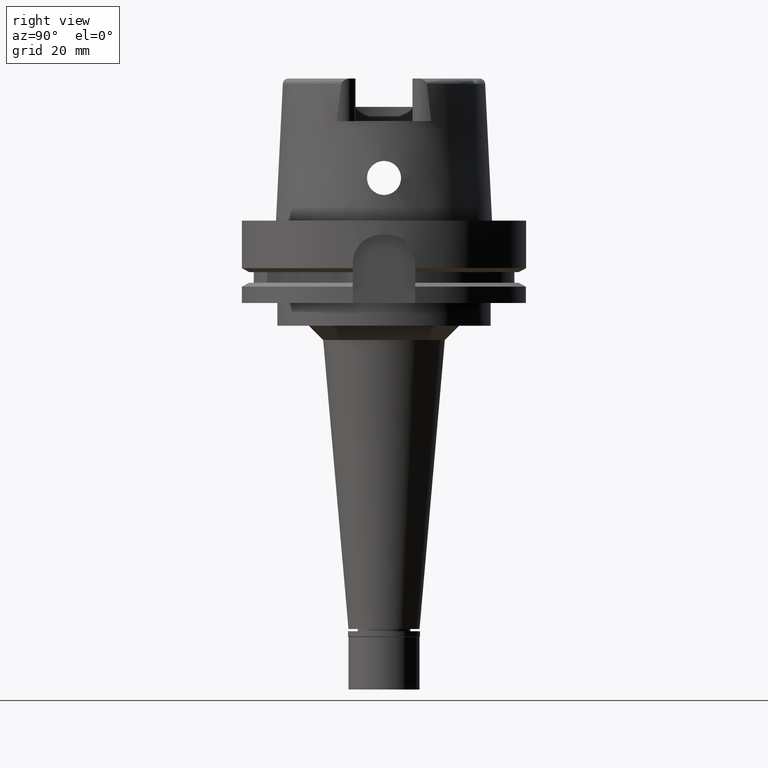
[diagram: clean part render]
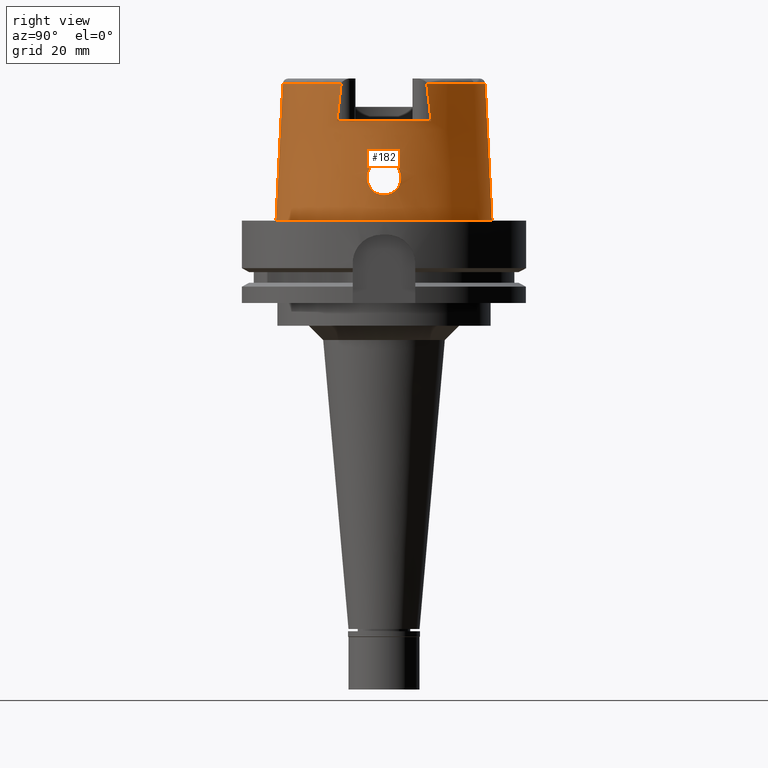
[diagram: same view with one face highlighted and labeled with its STEP entity id]
A machine part, right view. The second image highlights one B-rep face of the part: STEP entity #182.
In plain terms, the highlighted conical surface has half-angle 2.862 deg.
Its self-contained STEP definition (entity closure, byte-faithful):
#69 = CARTESIAN_POINT ( 'NONE',  ( 36.77170340282817307, 5.998323807747828695, 14.84586871748394898 ) ) ;
#91 = CARTESIAN_POINT ( 'NONE',  ( 32.25000000000000000, -16.55285457013000183, 35.00000000000000000 ) ) ;
#92 = CARTESIAN_POINT ( 'NONE',  ( 36.73062635922349273, 5.263057009970363964, 17.90742315768404680 ) ) ;
#116 = CARTESIAN_POINT ( 'NONE',  ( 36.73088728630819588, 5.963273442929759582, 15.76995501664153743 ) ) ;
#120 = CARTESIAN_POINT ( 'NONE',  ( 0.0000000000000000000, 0.0000000000000000000, 35.00000000000000000 ) ) ;
#148 = CARTESIAN_POINT ( 'NONE',  ( 37.06201828075841576, 5.085026754921087466, 11.80942053229333055 ) ) ;
#149 = CARTESIAN_POINT ( 'NONE',  ( 36.94905369668130390, -5.551755325992986378, 12.72446929271404414 ) ) ;
#150 = CONICAL_SURFACE ( 'NONE', #1864, 36.79747973821000073, 0.04996004983832824653 ) ;
#158 = LINE ( 'NONE', #572, #3070 ) ;
#172 = CARTESIAN_POINT ( 'NONE',  ( 36.71763611367505575, 5.802818758825854850, 16.53846350264511855 ) ) ;
#174 = CARTESIAN_POINT ( 'NONE',  ( 36.86289881201270902, -3.101799390110007160, 20.13631020265361471 ) ) ;
#180 = DIRECTION ( 'NONE',  ( 0.0000000000000000000, -1.000000000000000000, 0.0000000000000000000 ) ) ;
#182 = ADVANCED_FACE ( 'NONE', ( #4064, #205 ), #150, .T. ) ;
#198 = CARTESIAN_POINT ( 'NONE',  ( 0.0000000000000000000, 0.0000000000000000000, 1.023181539494999863E-12 ) ) ;
#199 = CARTESIAN_POINT ( 'NONE',  ( 36.88764643531273180, -2.613024239903320112, 20.40470655421233204 ) ) ;
#205 = FACE_BOUND ( 'NONE', #3739, .T. ) ;
#229 = CARTESIAN_POINT ( 'NONE',  ( 36.76210510961054467, -5.999969291128392612, 15.02948134559582449 ) ) ;
#251 = CARTESIAN_POINT ( 'NONE',  ( 0.0000000000000000000, 38.00001658251999714, 1.023181539494999863E-12 ) ) ;
#258 = CARTESIAN_POINT ( 'NONE',  ( 36.75520430954519213, -5.997838674879763410, 15.17282634179819212 ) ) ;
#273 = CIRCLE ( 'NONE', #4415, 38.00001658251999714 ) ;
#278 = CARTESIAN_POINT ( 'NONE',  ( 32.25000000000000000, 16.55285457013000183, 35.00000000000000000 ) ) ;
#284 = CARTESIAN_POINT ( 'NONE',  ( 37.51913731733983326, -1.534104571080828094, 9.142248273742586306 ) ) ;
#310 = ORIENTED_EDGE ( 'NONE', *, *, #1249, .F. ) ;
#314 = CARTESIAN_POINT ( 'NONE',  ( 37.07758419378381376, -5.012585787051692776, 11.70239769250137662 ) ) ;
#337 = CARTESIAN_POINT ( 'NONE',  ( 36.84474273342813433, 3.423711952793474289, 19.92753559525254659 ) ) ;
#365 = CARTESIAN_POINT ( 'NONE',  ( 36.86792965852482240, 3.018333182345886545, 20.18926292847180193 ) ) ;
#375 = CARTESIAN_POINT ( 'NONE',  ( 37.55000165825000380, 0.0000000000000000000, 9.000000000000000000 ) ) ;
#395 = CARTESIAN_POINT ( 'NONE',  ( 36.89319844010301352, 2.488527337151591912, 20.45983294518216056 ) ) ;
#399 = CARTESIAN_POINT ( 'NONE',  ( 37.16180421870872408, -4.583096864710112683, 11.12637670602410012 ) ) ;
#436 = CARTESIAN_POINT ( 'NONE',  ( 37.46510143188383779, 2.193262516983819133, 9.415134949131878983 ) ) ;
#462 = CARTESIAN_POINT ( 'NONE',  ( 37.39389957564971212, 2.961858504049465157, 9.781037490243443600 ) ) ;
#489 = CARTESIAN_POINT ( 'NONE',  ( 37.37200879162757161, 3.157378145749330844, 9.897493814660698774 ) ) ;
#515 = CARTESIAN_POINT ( 'NONE',  ( 36.71910958072909636, 5.545544434581100468, 17.29062471908202170 ) ) ;
#536 = CARTESIAN_POINT ( 'NONE',  ( 36.79297988199979841, 4.259196576708640158, 19.22603776392158537 ) ) ;
#561 = CARTESIAN_POINT ( 'NONE',  ( 36.83995049438819791, 3.503891532012454402, 19.87084743243649854 ) ) ;
#562 = CARTESIAN_POINT ( 'NONE',  ( 36.89778564757052237, -5.727707615563293331, 13.21009850542960784 ) ) ;
#572 = CARTESIAN_POINT ( 'NONE',  ( 0.002482252536764999965, 35.59494263424999616, 48.09987853799000135 ) ) ;
#578 = EDGE_CURVE ( 'NONE', #1991, #2463, #4198, .T. ) ;
#596 = CARTESIAN_POINT ( 'NONE',  ( 36.78368377135413425, 5.989813296407697329, 14.63850693621169086 ) ) ;
#597 = CARTESIAN_POINT ( 'NONE',  ( 36.79780175131855202, -4.187045417439573924, 19.29764023398736228 ) ) ;
#621 = CARTESIAN_POINT ( 'NONE',  ( 36.82225838300250587, 5.930942061816942612, 14.07103620850426040 ) ) ;
#622 = CARTESIAN_POINT ( 'NONE',  ( 36.87019529336619428, -2.964167350736573336, 20.21776577993959378 ) ) ;
#629 = DIRECTION ( 'NONE',  ( 0.0000000000000000000, 0.0000000000000000000, -1.000000000000000000 ) ) ;
#650 = CARTESIAN_POINT ( 'NONE',  ( 36.85894363251249928, 3.184285589736132849, 20.08887233118191062 ) ) ;
#651 = CARTESIAN_POINT ( 'NONE',  ( 36.79603966127876191, -4.213366307936619926, 19.27173219093134549 ) ) ;
#663 = VERTEX_POINT ( 'NONE', #4878 ) ;
#676 = CARTESIAN_POINT ( 'NONE',  ( 36.91960058821116775, -1.808267391334159369, 20.72193690257478593 ) ) ;
#706 = CARTESIAN_POINT ( 'NONE',  ( 37.45644412486605290, -2.300685249214515782, 9.458609365832110427 ) ) ;
#720 = EDGE_CURVE ( 'NONE', #1013, #5382, #1192, .T. ) ;
#725 = CARTESIAN_POINT ( 'NONE',  ( 0.0000000000000000000, -38.00001658251999714, 6.821210263297000155E-13 ) ) ;
#726 = B_SPLINE_CURVE_WITH_KNOTS ( 'NONE', 3,
 ( #375, #5143, #3847, #3816, #3016, #4296, #3478, #5201, #436, #4739, #831, #4349, #1705, #2601, #2212, #462, #3897, #489, #4657, #2100, #1677, #3392, #5116, #1392, #4791, #5225, #1053, #1869, #2285, #1468, #5333, #2733, #4002, #4905, #5310, #2763, #3584, #3181, #3100, #148, #1442, #4453, #2261, #4481, #3152, #4031, #1423, #1021, #976, #621, #4874, #2341, #596, #2318, #69, #3974, #1896, #1787, #3505, #116, #4380, #172, #3610, #4824, #1366, #3948, #3075, #944, #2657, #515, #2237, #92, #1813, #1840, #5282, #3558, #3527, #3129, #5251, #2682, #4403, #536, #4847, #996, #2707, #4428, #561, #337, #1184, #650, #365, #1635, #4254, #395, #5507, #4224, #3748, #2535, #5479 ),
 .UNSPECIFIED., .F., .F.,
 ( 4, 2, 2, 1, 1, 1, 2, 2, 2, 2, 1, 1, 1, 2, 2, 2, 2, 1, 1, 2, 2, 2, 2, 2, 2, 1, 1, 2, 2, 2, 2, 2, 1, 2, 2, 2, 2, 1, 1, 1, 1, 2, 2, 2, 2, 2, 1, 1, 2, 2, 2, 1, 2, 2, 2, 1, 2, 2, 4 ),
 ( 0.0000000000000000000, 0.06249999999999854283, 0.09374999999999780731, 0.1093749999999975020, 0.1171874999999972800, 0.1210937499999971828, 0.1230468749999971134, 0.1249999999999970579, 0.1562499999999947542, 0.1718749999999936162, 0.1796874999999930334, 0.1835937499999927003, 0.1855468749999926725, 0.1865234374999927280, 0.1874999999999928113, 0.2187499999999952816, 0.2343749999999965861, 0.2421874999999972800, 0.2460937499999976408, 0.2480468749999978073, 0.2499999999999979461, 0.2812499999999983902, 0.2968749999999985012, 0.3124999999999986677, 0.3437499999999986677, 0.3593749999999986677, 0.3671874999999987788, 0.3710937499999986677, 0.3749999999999985567, 0.4374999999999946709, 0.4687499999999927280, 0.4843749999999916178, 0.4921874999999908962, 0.4960937499999905631, 0.4999999999999902300, 0.5624999999999813483, 0.5937499999999771294, 0.6093749999999753530, 0.6171874999999745759, 0.6210937499999740208, 0.6230468749999739098, 0.6240234374999736877, 0.6249999999999734657, 0.6874999999999700240, 0.7187499999999682476, 0.7343749999999674705, 0.7421874999999670264, 0.7460937499999668043, 0.7480468749999666933, 0.7499999999999665823, 0.7812499999999702460, 0.7968749999999723554, 0.8046874999999734657, 0.8124999999999745759, 0.8437499999999792388, 0.8593749999999815703, 0.8671874999999825695, 0.8749999999999835687, 1.000000000000000000 ),
 .UNSPECIFIED. ) ;
#767 = DIRECTION ( 'NONE',  ( 5.154182075151068004E-05, -0.04993927430816067631, -0.9987522546783135224 ) ) ;
#796 = CARTESIAN_POINT ( 'NONE',  ( 37.27342246940529691, -3.931114298050382594, 10.44490115556769716 ) ) ;
#813 = CARTESIAN_POINT ( 'NONE',  ( 0.0000000000000000000, 0.0000000000000000000, 48.09987853799000135 ) ) ;
#818 = B_SPLINE_CURVE_WITH_KNOTS ( 'NONE', 3,
 ( #2236, #2259, #3947, #91 ),
 .UNSPECIFIED., .F., .F.,
 ( 4, 4 ),
 ( 0.0000000000000000000, 1.000000000000000000 ),
 .UNSPECIFIED. ) ;
#831 = CARTESIAN_POINT ( 'NONE',  ( 37.46043437577900193, 2.251970359335590643, 9.438634198803594444 ) ) ;
#944 = CARTESIAN_POINT ( 'NONE',  ( 36.71889293941479337, 5.553254265573370319, 17.27187298771639234 ) ) ;
#971 = EDGE_CURVE ( 'NONE', #1991, #3277, #2361, .T. ) ;
#976 = CARTESIAN_POINT ( 'NONE',  ( 36.86953088259854638, 5.819979767177884789, 13.48870076563305886 ) ) ;
#996 = CARTESIAN_POINT ( 'NONE',  ( 36.81172258308835410, 3.966476796711655872, 19.50617699077866263 ) ) ;
#1013 = VERTEX_POINT ( 'NONE', #5141 ) ;
#1021 = CARTESIAN_POINT ( 'NONE',  ( 36.90767284457509589, 5.704294105478120436, 13.09073213766335542 ) ) ;
#1022 = CARTESIAN_POINT ( 'NONE',  ( 36.75576063047495268, -4.821039313111556091, 18.59330048862962670 ) ) ;
#1038 = CARTESIAN_POINT ( 'NONE',  ( 36.94998175923000616, -1.394597051988999957E-13, 21.00000000000000000 ) ) ;
#1053 = CARTESIAN_POINT ( 'NONE',  ( 37.27380537146360950, 3.905228964673713943, 10.44364606193526690 ) ) ;
#1054 = CARTESIAN_POINT ( 'NONE',  ( 36.90823929613227961, -2.126273191704931342, 20.61103980981535955 ) ) ;
#1080 = CARTESIAN_POINT ( 'NONE',  ( 36.74230684364624011, -5.981357832372917294, 15.48226559618569986 ) ) ;
#1106 = CARTESIAN_POINT ( 'NONE',  ( 36.94480014966767811, -5.567238668683368807, 12.76255512236355649 ) ) ;
#1138 = CARTESIAN_POINT ( 'NONE',  ( 36.85257459690193116, -3.289353726538242206, 20.01800302749451532 ) ) ;
#1184 = CARTESIAN_POINT ( 'NONE',  ( 36.84722144884961637, 3.382054583819298799, 19.95620573746401050 ) ) ;
#1190 = CARTESIAN_POINT ( 'NONE',  ( 37.37920154021303887, -3.099554088553400089, 9.858807036761366049 ) ) ;
#1192 = LINE ( 'NONE', #2877, #2647 ) ;
#1245 = DIRECTION ( 'NONE',  ( 0.9060280460804950309, -0.4232176505245974218, 0.0000000000000000000 ) ) ;
#1249 = EDGE_CURVE ( 'NONE', #663, #2463, #818, .T. ) ;
#1350 = DIRECTION ( 'NONE',  ( -5.154182075159067383E-05, 0.04993927430816067631, -0.9987522546783135224 ) ) ;
#1366 = CARTESIAN_POINT ( 'NONE',  ( 36.71753689261983311, 5.609068337179357044, 17.13138083986000382 ) ) ;
#1392 = CARTESIAN_POINT ( 'NONE',  ( 37.33690346293823126, 3.448871329368336625, 10.08744184719453862 ) ) ;
#1423 = CARTESIAN_POINT ( 'NONE',  ( 36.95523982656138884, 5.529030572528073506, 12.66964793382731536 ) ) ;
#1442 = CARTESIAN_POINT ( 'NONE',  ( 37.03946302268935398, 5.186539886741170946, 11.97691283089895720 ) ) ;
#1443 = CARTESIAN_POINT ( 'NONE',  ( 36.79435038799677216, -4.238498976146563457, 19.24680091854346031 ) ) ;
#1447 = DIRECTION ( 'NONE',  ( 0.0000000000000000000, 0.0000000000000000000, -1.000000000000000000 ) ) ;
#1468 = CARTESIAN_POINT ( 'NONE',  ( 37.23558469675228366, 4.153382016425694268, 10.66978355155637814 ) ) ;
#1469 = CARTESIAN_POINT ( 'NONE',  ( 36.72196373337763475, -5.460058584533166837, 17.48791676837998565 ) ) ;
#1500 = CARTESIAN_POINT ( 'NONE',  ( 36.77254798616206699, -4.561075753685750023, 18.92336580081714459 ) ) ;
#1523 = CARTESIAN_POINT ( 'NONE',  ( 36.94004933455384077, -5.584378040727984605, 12.80547493325774333 ) ) ;
#1552 = CARTESIAN_POINT ( 'NONE',  ( 36.85914309946117839, -3.171395853947994503, 20.09388249812333527 ) ) ;
#1583 = CARTESIAN_POINT ( 'NONE',  ( 37.44575798109465836, -2.427495654717493956, 9.512690912805735977 ) ) ;
#1601 = ORIENTED_EDGE ( 'NONE', *, *, #578, .T. ) ;
#1612 = CARTESIAN_POINT ( 'NONE',  ( 37.55000165824999669, -0.7490591626403755310, 9.000000000000000000 ) ) ;
#1635 = CARTESIAN_POINT ( 'NONE',  ( 36.88082111616634506, 2.758243680933952557, 20.32933279423451012 ) ) ;
#1677 = CARTESIAN_POINT ( 'NONE',  ( 37.35653249525491759, 3.287729809333916897, 9.980948807357803432 ) ) ;
#1693 = ORIENTED_EDGE ( 'NONE', *, *, #720, .T. ) ;
#1701 = CARTESIAN_POINT ( 'NONE',  ( 37.04898031199340380, -5.144495187543942194, 11.91180162935736675 ) ) ;
#1705 = CARTESIAN_POINT ( 'NONE',  ( 37.44482247247967166, 2.444141203574963228, 9.517352663559757175 ) ) ;
#1759 = CARTESIAN_POINT ( 'NONE',  ( 32.24997259520375081, 15.06456602542215073, 48.09965197336330078 ) ) ;
#1787 = CARTESIAN_POINT ( 'NONE',  ( 36.76455102892111881, 6.000017024433938140, 14.98107322157115640 ) ) ;
#1797 = EDGE_CURVE ( 'NONE', #4426, #3277, #4371, .T. ) ;
#1813 = CARTESIAN_POINT ( 'NONE',  ( 36.74922096801726212, 4.946676914274842574, 18.40126551930150001 ) ) ;
#1837 = ORIENTED_EDGE ( 'NONE', *, *, #971, .F. ) ;
#1840 = CARTESIAN_POINT ( 'NONE',  ( 36.75653007627405344, 4.828228318386378781, 18.56845981740935514 ) ) ;
#1864 = AXIS2_PLACEMENT_3D ( 'NONE', #2855, #629, #180 ) ;
#1869 = CARTESIAN_POINT ( 'NONE',  ( 37.25586636964480647, 4.023786227894792233, 10.54893967564296631 ) ) ;
#1870 = CARTESIAN_POINT ( 'NONE',  ( 36.72592427972588069, -5.364110251285616471, 17.68975218841473307 ) ) ;
#1896 = CARTESIAN_POINT ( 'NONE',  ( 36.76566029138945169, 5.999906815838277119, 14.95958094295163221 ) ) ;
#1898 = CARTESIAN_POINT ( 'NONE',  ( 36.71620885480484020, -5.813391255880296704, 16.53515844540094193 ) ) ;
#1922 = CARTESIAN_POINT ( 'NONE',  ( 36.80191179852737804, -4.125073597716761853, 19.35752356896704285 ) ) ;
#1957 = CARTESIAN_POINT ( 'NONE',  ( 36.78131032407231515, -6.000419801347047333, 14.64910524596534280 ) ) ;
#1981 = CARTESIAN_POINT ( 'NONE',  ( 36.93377846801995901, -1.320312059235486224, 20.85622490190792178 ) ) ;
#1991 = VERTEX_POINT ( 'NONE', #278 ) ;
#2065 = EDGE_CURVE ( 'NONE', #663, #1013, #2288, .T. ) ;
#2100 = CARTESIAN_POINT ( 'NONE',  ( 37.35850046496455690, 3.271442713564229887, 9.970292572783325369 ) ) ;
#2123 = AXIS2_PLACEMENT_3D ( 'NONE', #813, #5130, #1245 ) ;
#2124 = CARTESIAN_POINT ( 'NONE',  ( 36.96692811447607596, -5.486345123645533839, 12.56527835987618147 ) ) ;
#2212 = CARTESIAN_POINT ( 'NONE',  ( 37.40308539954908440, 2.875079783405542599, 9.732794893257976199 ) ) ;
#2213 = CARTESIAN_POINT ( 'NONE',  ( 36.94998175923000616, -1.394597051988999957E-13, 21.00000000000000000 ) ) ;
#2236 = CARTESIAN_POINT ( 'NONE',  ( 32.25000552016999222, -15.06439830949000047, 48.10004152263000776 ) ) ;
#2237 = CARTESIAN_POINT ( 'NONE',  ( 36.72267357466319027, 5.422019584410496584, 17.58897493193391171 ) ) ;
#2259 = CARTESIAN_POINT ( 'NONE',  ( 32.25000000000000000, -15.55533879106161343, 43.94468579193523539 ) ) ;
#2261 = CARTESIAN_POINT ( 'NONE',  ( 36.98991360892812708, 5.395393653835086845, 12.37181202511919764 ) ) ;
#2285 = CARTESIAN_POINT ( 'NONE',  ( 37.24668042084037012, 4.083403963813522886, 10.60328843544962218 ) ) ;
#2287 = CARTESIAN_POINT ( 'NONE',  ( 36.85123313282241497, -3.313108648785679122, 20.00235078773735964 ) ) ;
#2288 = CIRCLE ( 'NONE', #2123, 35.59494289391000166 ) ;
#2313 = AXIS2_PLACEMENT_3D ( 'NONE', #120, #1447, #2661 ) ;
#2318 = CARTESIAN_POINT ( 'NONE',  ( 36.77559331271841359, 5.996032165253316393, 14.77699010449084938 ) ) ;
#2319 = CARTESIAN_POINT ( 'NONE',  ( 36.71996599173412079, -5.517288947099817875, 17.35803693623396882 ) ) ;
#2341 = CARTESIAN_POINT ( 'NONE',  ( 36.78949159558496973, 5.983486453679616623, 14.54521603347079939 ) ) ;
#2343 = CARTESIAN_POINT ( 'NONE',  ( 36.85457335903686271, -3.253798265164045134, 20.04124897950999085 ) ) ;
#2361 = B_SPLINE_CURVE_WITH_KNOTS ( 'NONE', 3,
 ( #3045, #5115, #4237, #1759 ),
 .UNSPECIFIED., .F., .F.,
 ( 4, 4 ),
 ( 0.0000000000000000000, 1.000000000000000000 ),
 .UNSPECIFIED. ) ;
#2368 = CARTESIAN_POINT ( 'NONE',  ( 36.90313027499023946, -2.254538170108190354, 20.56033827074014297 ) ) ;
#2400 = CARTESIAN_POINT ( 'NONE',  ( 36.90187724947978865, -2.285052347104364223, 20.54784456235053369 ) ) ;
#2425 = CARTESIAN_POINT ( 'NONE',  ( 37.55000165825000380, 0.0000000000000000000, 9.000000000000000000 ) ) ;
#2435 = ORIENTED_EDGE ( 'NONE', *, *, #1797, .T. ) ;
#2448 = VERTEX_POINT ( 'NONE', #1038 ) ;
#2451 = CARTESIAN_POINT ( 'NONE',  ( 37.45415392294505352, -2.328345683995610482, 9.470178937993246393 ) ) ;
#2463 = VERTEX_POINT ( 'NONE', #2864 ) ;
#2471 = AXIS2_PLACEMENT_3D ( 'NONE', #3551, #4027, #3523 ) ;
#2535 = CARTESIAN_POINT ( 'NONE',  ( 36.94998175922998485, 0.7278236856466160365, 21.00000000000000000 ) ) ;
#2537 = CARTESIAN_POINT ( 'NONE',  ( 37.20985621195183768, -4.309484051093134482, 10.82514528166224999 ) ) ;
#2601 = CARTESIAN_POINT ( 'NONE',  ( 37.42924552239178837, 2.615721727748984371, 9.596655347589981844 ) ) ;
#2647 = VECTOR ( 'NONE', #767, 1000.000000000000227 ) ;
#2657 = CARTESIAN_POINT ( 'NONE',  ( 36.71902651044842258, 5.548463823210907364, 17.28354746238040818 ) ) ;
#2661 = DIRECTION ( 'NONE',  ( 0.8896561898442558736, 0.4566309931134779343, 0.0000000000000000000 ) ) ;
#2682 = CARTESIAN_POINT ( 'NONE',  ( 36.79090408789127764, 4.291162142293729609, 19.19358268079114893 ) ) ;
#2707 = CARTESIAN_POINT ( 'NONE',  ( 36.82572834283892860, 3.739103409472110950, 19.69347930708582695 ) ) ;
#2733 = CARTESIAN_POINT ( 'NONE',  ( 37.22750586228755765, 4.203499434558827907, 10.71855292225444423 ) ) ;
#2735 = CARTESIAN_POINT ( 'NONE',  ( 36.81012590807573304, -3.998932515666080434, 19.47498797828341566 ) ) ;
#2763 = CARTESIAN_POINT ( 'NONE',  ( 37.14350679648711662, 4.685766028683148399, 11.25122239263413171 ) ) ;
#2764 = CARTESIAN_POINT ( 'NONE',  ( 36.85246824458670289, -5.860252696469039790, 13.69782209348710822 ) ) ;
#2789 = CARTESIAN_POINT ( 'NONE',  ( 36.76087165488234376, -5.999800204498583867, 15.05438827538233681 ) ) ;
#2817 = CARTESIAN_POINT ( 'NONE',  ( 36.94685047858487792, -5.559788466731777845, 12.74416401146494948 ) ) ;
#2833 = ORIENTED_EDGE ( 'NONE', *, *, #2065, .T. ) ;
#2850 = CARTESIAN_POINT ( 'NONE',  ( 37.42948613191112628, -2.608080179518634800, 9.595763437128917772 ) ) ;
#2855 = CARTESIAN_POINT ( 'NONE',  ( 0.0000000000000000000, 0.0000000000000000000, 24.04993926899999934 ) ) ;
#2864 = CARTESIAN_POINT ( 'NONE',  ( 32.25000000000000000, -16.55285457013000183, 35.00000000000000000 ) ) ;
#2876 = CARTESIAN_POINT ( 'NONE',  ( 37.06944078969374345, -5.050823309917799264, 11.76108891319050542 ) ) ;
#2877 = CARTESIAN_POINT ( 'NONE',  ( -0.002482252536761000127, -35.59494263424999616, 48.09987853799000135 ) ) ;
#2902 = CARTESIAN_POINT ( 'NONE',  ( 37.44044173439611711, -2.487510234726518554, 9.539756727516762069 ) ) ;
#2933 = CARTESIAN_POINT ( 'NONE',  ( 37.21423763425909215, -4.283604238093161598, 10.79870414874793916 ) ) ;
#2960 = CARTESIAN_POINT ( 'NONE',  ( 37.17923918027243957, -4.486608826936614669, 11.01410227273541409 ) ) ;
#3016 = CARTESIAN_POINT ( 'NONE',  ( 37.50998555997327344, 1.517592506705977451, 9.191699911530781364 ) ) ;
#3045 = CARTESIAN_POINT ( 'NONE',  ( 32.25000000000000000, 16.55285457013000183, 35.00000000000000000 ) ) ;
#3070 = VECTOR ( 'NONE', #1350, 1000.000000000000227 ) ;
#3075 = CARTESIAN_POINT ( 'NONE',  ( 36.71869691278730130, 5.560410601725643609, 17.25435409545789867 ) ) ;
#3100 = CARTESIAN_POINT ( 'NONE',  ( 37.09653683465862173, 4.923253219138787884, 11.56912527921183909 ) ) ;
#3129 = CARTESIAN_POINT ( 'NONE',  ( 36.78447426091572225, 4.390347064634823937, 19.09029678280223408 ) ) ;
#3152 = CARTESIAN_POINT ( 'NONE',  ( 36.96306944284768292, 5.499648888793717383, 12.60114551949081019 ) ) ;
#3153 = CARTESIAN_POINT ( 'NONE',  ( 36.73711114790047816, -5.141475257626965778, 18.09899811072029507 ) ) ;
#3181 = CARTESIAN_POINT ( 'NONE',  ( 37.10850795906517874, 4.864945071334904725, 11.48687514057967007 ) ) ;
#3183 = CARTESIAN_POINT ( 'NONE',  ( 36.72724461711807464, -5.925783873528932766, 15.96080321649768763 ) ) ;
#3215 = CARTESIAN_POINT ( 'NONE',  ( 36.72417677241267597, -5.403958486920397597, 17.60866077582418043 ) ) ;
#3242 = CARTESIAN_POINT ( 'NONE',  ( 36.91466364792065491, -1.955066589413166467, 20.67420690998125465 ) ) ;
#3266 = CARTESIAN_POINT ( 'NONE',  ( 36.71471743786320729, -5.699807342224591622, 16.91677120290892233 ) ) ;
#3277 = VERTEX_POINT ( 'NONE', #5207 ) ;
#3323 = CARTESIAN_POINT ( 'NONE',  ( 37.05825142640930636, -5.102631713477792985, 11.84271860123127595 ) ) ;
#3352 = CARTESIAN_POINT ( 'NONE',  ( 37.10389505768382179, -4.887757585971056251, 11.51449243855592997 ) ) ;
#3392 = CARTESIAN_POINT ( 'NONE',  ( 37.35521687651919365, 3.298586860855075464, 9.988077525046884730 ) ) ;
#3417 = CARTESIAN_POINT ( 'NONE',  ( 37.07431617320113304, -5.027968615220896886, 11.72590029850547744 ) ) ;
#3478 = CARTESIAN_POINT ( 'NONE',  ( 37.48354635218327502, 1.945613778290647966, 9.322656526188357162 ) ) ;
#3505 = CARTESIAN_POINT ( 'NONE',  ( 36.74416363428813526, 5.999695096182693810, 15.38426938620163575 ) ) ;
#3523 = DIRECTION ( 'NONE',  ( 0.0000000000000000000, 1.000000000000000000, 0.0000000000000000000 ) ) ;
#3527 = CARTESIAN_POINT ( 'NONE',  ( 36.78079601895100836, 4.447319055204957294, 19.02795957292195084 ) ) ;
#3551 = CARTESIAN_POINT ( 'NONE',  ( 0.0000000000000000000, 0.0000000000000000000, 48.09987853799000135 ) ) ;
#3558 = CARTESIAN_POINT ( 'NONE',  ( 36.77364782977009128, 4.558384542443794984, 18.90301816069822749 ) ) ;
#3584 = CARTESIAN_POINT ( 'NONE',  ( 37.13186683566625135, 4.746792466660187060, 11.32880154398581141 ) ) ;
#3586 = CARTESIAN_POINT ( 'NONE',  ( 36.83120344502833632, -3.658939787615237638, 19.75930225344317392 ) ) ;
#3610 = CARTESIAN_POINT ( 'NONE',  ( 36.71654653490796250, 5.716830651086461046, 16.82420974150081250 ) ) ;
#3611 = CARTESIAN_POINT ( 'NONE',  ( 36.84054995969425761, -3.500639162330452692, 19.87691744488320111 ) ) ;
#3638 = CARTESIAN_POINT ( 'NONE',  ( 36.90156843378151308, -2.292518513694895788, 20.54476195605076683 ) ) ;
#3664 = CARTESIAN_POINT ( 'NONE',  ( 36.80587811518743280, -5.968770580322639852, 14.27426339061150529 ) ) ;
#3665 = EDGE_CURVE ( 'NONE', #5515, #2448, #726, .T. ) ;
#3693 = CARTESIAN_POINT ( 'NONE',  ( 36.74781535825606937, -5.991733129800956625, 15.33912322331723033 ) ) ;
#3722 = CARTESIAN_POINT ( 'NONE',  ( 37.45167754845771668, -2.358007411870456149, 9.482699018398765389 ) ) ;
#3734 = ORIENTED_EDGE ( 'NONE', *, *, #5302, .F. ) ;
#3739 = EDGE_LOOP ( 'NONE', ( #4071, #3734 ) ) ;
#3748 = CARTESIAN_POINT ( 'NONE',  ( 36.93369841153609912, 1.519969757006665700, 20.86588656624450167 ) ) ;
#3757 = CARTESIAN_POINT ( 'NONE',  ( 37.19964045387366269, -4.369297902718463966, 10.88739804151597745 ) ) ;
#3765 = EDGE_LOOP ( 'NONE', ( #310, #2833, #1693, #3854, #5511, #2435, #1837, #1601 ) ) ;
#3801 = EDGE_CURVE ( 'NONE', #5382, #4526, #273, .T. ) ;
#3812 = CARTESIAN_POINT ( 'NONE',  ( 37.21841516280284878, -4.258839404282771746, 10.77359671049403822 ) ) ;
#3816 = CARTESIAN_POINT ( 'NONE',  ( 37.51951320242009302, 1.326388423840521247, 9.145214055518181340 ) ) ;
#3843 = CARTESIAN_POINT ( 'NONE',  ( 37.42175158480391417, -2.689182493092929338, 9.635601683288347985 ) ) ;
#3847 = CARTESIAN_POINT ( 'NONE',  ( 37.54237954429252966, 0.7534733083923170760, 9.034802869984902784 ) ) ;
#3854 = ORIENTED_EDGE ( 'NONE', *, *, #3801, .T. ) ;
#3866 = B_SPLINE_CURVE_WITH_KNOTS ( 'NONE', 3,
 ( #2213, #3924, #4792, #1981, #4532, #676, #3242, #1054, #4454, #2368, #4429, #2400, #3638, #4875, #199, #4505, #622, #174, #1552, #2343, #1138, #2287, #5365, #3611, #3586, #4003, #2735, #1922, #597, #651, #5311, #1443, #1500, #1022, #3153, #5334, #1870, #3215, #1469, #4083, #2319, #4111, #4032, #4959, #3266, #1898, #3183, #4934, #1080, #3693, #258, #4906, #2789, #229, #1957, #3664, #2764, #4482, #562, #4060, #5393, #5422, #1523, #1106, #2817, #4991, #149, #2124, #4137, #5485, #5575, #1701, #3323, #2876, #3417, #314, #4592, #3352, #5514, #399, #2960, #3757, #2537, #2933, #5138, #3812, #796, #4256, #1190, #4677, #3843, #2850, #2902, #1583, #3722, #2451, #4564, #706, #284, #1612, #2425 ),
 .UNSPECIFIED., .F., .F.,
 ( 4, 2, 2, 1, 1, 1, 1, 2, 2, 2, 2, 1, 1, 2, 2, 2, 1, 1, 1, 2, 2, 2, 2, 2, 1, 1, 2, 2, 2, 2, 1, 1, 2, 2, 2, 2, 2, 1, 1, 1, 2, 2, 2, 2, 1, 1, 2, 2, 2, 1, 1, 1, 2, 2, 2, 2, 2, 1, 1, 2, 2, 4 ),
 ( 0.0000000000000000000, 0.06250000000003370915, 0.09375000000005054290, 0.1093750000000589528, 0.1171875000000631023, 0.1210937500000651146, 0.1230468750000661693, 0.1240234375000665717, 0.1250000000000669742, 0.1562500000000759948, 0.1718750000000805467, 0.1796875000000826839, 0.1835937500000835720, 0.1855468750000838496, 0.1875000000000840994, 0.2187500000000907330, 0.2343750000000938138, 0.2421875000000954237, 0.2460937500000962286, 0.2480468750000966172, 0.2500000000000969780, 0.3125000000001014744, 0.3437500000001039724, 0.3593750000001052491, 0.3671875000001058598, 0.3710937500001059153, 0.3730468750001056377, 0.3750000000001053047, 0.4375000000000867084, 0.4687500000000771050, 0.4843750000000724421, 0.4921875000000702771, 0.4960937500000692224, 0.5000000000000681677, 0.5625000000000488498, 0.5937500000000389688, 0.6093750000000339728, 0.6171875000000315303, 0.6210937500000301981, 0.6230468750000296430, 0.6240234375000294209, 0.6250000000000290878, 0.6562500000000274225, 0.6718750000000264233, 0.6796875000000258682, 0.6835937500000256462, 0.6855468750000254241, 0.6875000000000253131, 0.7187500000000243139, 0.7343750000000237588, 0.7421875000000234257, 0.7460937500000233147, 0.7480468750000230926, 0.7500000000000228706, 0.8125000000000183187, 0.8437500000000162093, 0.8593750000000150990, 0.8671875000000145439, 0.8710937500000142109, 0.8730468750000138778, 0.8750000000000136557, 1.000000000000000000 ),
 .UNSPECIFIED. ) ;
#3897 = CARTESIAN_POINT ( 'NONE',  ( 37.37942216537292950, 3.092179744492431492, 9.857921792036375308 ) ) ;
#3924 = CARTESIAN_POINT ( 'NONE',  ( 36.94998175922999195, -0.3631582503415451413, 20.99999999999999645 ) ) ;
#3947 = CARTESIAN_POINT ( 'NONE',  ( 32.25000000000000000, -16.05145953545494564, 39.57800528439190657 ) ) ;
#3948 = CARTESIAN_POINT ( 'NONE',  ( 36.71826982678384610, 5.576903453816427714, 17.21342714078795666 ) ) ;
#3974 = CARTESIAN_POINT ( 'NONE',  ( 36.76804647207944043, 5.999429092852299306, 14.91417425355553483 ) ) ;
#4002 = CARTESIAN_POINT ( 'NONE',  ( 37.22566677179784733, 4.214813397353410984, 10.72969554207388576 ) ) ;
#4003 = CARTESIAN_POINT ( 'NONE',  ( 36.81715631362698815, -3.887142167175281049, 19.57163267875095869 ) ) ;
#4027 = DIRECTION ( 'NONE',  ( 0.0000000000000000000, 0.0000000000000000000, -1.000000000000000000 ) ) ;
#4031 = CARTESIAN_POINT ( 'NONE',  ( 36.95774489227888893, 5.519693041102915032, 12.64763322360882292 ) ) ;
#4032 = CARTESIAN_POINT ( 'NONE',  ( 36.71932879702814034, -5.538168865239745386, 17.30841963624169111 ) ) ;
#4060 = CARTESIAN_POINT ( 'NONE',  ( 36.90757951137177173, -5.696189673111709872, 13.11208310119333476 ) ) ;
#4064 = FACE_OUTER_BOUND ( 'NONE', #3765, .T. ) ;
#4071 = ORIENTED_EDGE ( 'NONE', *, *, #3665, .F. ) ;
#4083 = CARTESIAN_POINT ( 'NONE',  ( 36.72095926934379406, -5.487190704615186654, 17.42776760322716356 ) ) ;
#4111 = CARTESIAN_POINT ( 'NONE',  ( 36.71957857213634213, -5.529860257531723278, 17.32825280609049301 ) ) ;
#4137 = CARTESIAN_POINT ( 'NONE',  ( 36.98653479186371129, -5.410826303748097921, 12.39968017810078038 ) ) ;
#4198 = CIRCLE ( 'NONE', #2313, 36.24995854370000359 ) ;
#4224 = CARTESIAN_POINT ( 'NONE',  ( 36.89909629768657595, 2.351861135406767112, 20.52010484799429690 ) ) ;
#4237 = CARTESIAN_POINT ( 'NONE',  ( 32.25000000000000000, 15.55558130513584736, 43.94359287233854161 ) ) ;
#4254 = CARTESIAN_POINT ( 'NONE',  ( 36.88711994964285878, 2.625412980764580517, 20.39673761976665745 ) ) ;
#4256 = CARTESIAN_POINT ( 'NONE',  ( 37.31986989405358912, -3.597220678840324926, 10.18165942255907019 ) ) ;
#4296 = CARTESIAN_POINT ( 'NONE',  ( 37.49283580356894419, 1.803149696083593989, 9.276494919453286414 ) ) ;
#4349 = CARTESIAN_POINT ( 'NONE',  ( 37.45939340440283871, 2.264876689965411138, 9.443880539944908392 ) ) ;
#4371 = CIRCLE ( 'NONE', #2471, 35.59494289391000166 ) ;
#4380 = CARTESIAN_POINT ( 'NONE',  ( 36.71984044655611257, 5.850219281319455789, 16.34658812603511180 ) ) ;
#4403 = CARTESIAN_POINT ( 'NONE',  ( 36.79221695802473846, 4.270941136394032611, 19.21417489451300753 ) ) ;
#4415 = AXIS2_PLACEMENT_3D ( 'NONE', #198, #4673, #5104 ) ;
#4426 = VERTEX_POINT ( 'NONE', #5472 ) ;
#4428 = CARTESIAN_POINT ( 'NONE',  ( 36.83279304894241335, 3.623117239827770675, 19.78433902146071333 ) ) ;
#4429 = CARTESIAN_POINT ( 'NONE',  ( 36.90237964644845903, -2.272847603787624404, 20.55285577761266680 ) ) ;
#4453 = CARTESIAN_POINT ( 'NONE',  ( 37.00631580238243856, 5.327637900931849302, 12.23846285490497010 ) ) ;
#4454 = CARTESIAN_POINT ( 'NONE',  ( 36.90486097320911085, -2.211800909003285742, 20.57755752649596914 ) ) ;
#4481 = CARTESIAN_POINT ( 'NONE',  ( 36.97107769578828851, 5.469187823848330687, 12.53171190271635993 ) ) ;
#4482 = CARTESIAN_POINT ( 'NONE',  ( 36.86962136150757630, -5.813915311670299069, 13.50336500531563466 ) ) ;
#4505 = CARTESIAN_POINT ( 'NONE',  ( 36.87477302260239753, -2.874498642705833440, 20.26753687286091221 ) ) ;
#4526 = VERTEX_POINT ( 'NONE', #251 ) ;
#4532 = CARTESIAN_POINT ( 'NONE',  ( 36.92871493951681572, -1.515123200011543991, 20.80912843645458210 ) ) ;
#4564 = CARTESIAN_POINT ( 'NONE',  ( 37.45579137639126088, -2.308598250137336994, 9.461905677811422777 ) ) ;
#4592 = CARTESIAN_POINT ( 'NONE',  ( 37.07944034948619105, -5.003809135602016234, 11.68910189935939314 ) ) ;
#4657 = CARTESIAN_POINT ( 'NONE',  ( 37.36305418552925062, 3.233430167445869419, 9.945685231387807690 ) ) ;
#4673 = DIRECTION ( 'NONE',  ( 0.0000000000000000000, 0.0000000000000000000, 1.000000000000000000 ) ) ;
#4677 = CARTESIAN_POINT ( 'NONE',  ( 37.39725550713069424, -2.934102071663988287, 9.763118088113651893 ) ) ;
#4723 = CARTESIAN_POINT ( 'NONE',  ( 37.55000165825000380, 0.0000000000000000000, 9.000000000000000000 ) ) ;
#4739 = CARTESIAN_POINT ( 'NONE',  ( 37.46231013038573820, 2.228496234771856432, 9.429186360534876243 ) ) ;
#4791 = CARTESIAN_POINT ( 'NONE',  ( 37.31760234894014872, 3.596830972178310493, 10.19359969815894118 ) ) ;
#4792 = CARTESIAN_POINT ( 'NONE',  ( 36.94593093642749437, -0.7414479164531115885, 20.96696163295388970 ) ) ;
#4824 = CARTESIAN_POINT ( 'NONE',  ( 36.71655597566301310, 5.670117240181110851, 16.96656458698627290 ) ) ;
#4847 = CARTESIAN_POINT ( 'NONE',  ( 36.80255027986323313, 4.111923164467679470, 19.37386066774089599 ) ) ;
#4874 = CARTESIAN_POINT ( 'NONE',  ( 36.80815762369861943, 5.957537315262872113, 14.26277308271563271 ) ) ;
#4875 = CARTESIAN_POINT ( 'NONE',  ( 36.89508234378853757, -2.448813482600110891, 20.47998433089428616 ) ) ;
#4876 = EDGE_CURVE ( 'NONE', #4426, #4526, #158, .T. ) ;
#4878 = CARTESIAN_POINT ( 'NONE',  ( 32.25000552016999222, -15.06439830949000047, 48.10004152263000776 ) ) ;
#4905 = CARTESIAN_POINT ( 'NONE',  ( 37.20135130327471273, 4.363746516823599819, 10.87729898760135505 ) ) ;
#4906 = CARTESIAN_POINT ( 'NONE',  ( 36.75857722100715108, -5.999184118844259395, 15.10173734126240852 ) ) ;
#4934 = CARTESIAN_POINT ( 'NONE',  ( 36.73238964403926587, -5.953612642407883904, 15.76901430466133647 ) ) ;
#4959 = CARTESIAN_POINT ( 'NONE',  ( 36.71922847701139858, -5.541574442525060817, 17.30024144840995959 ) ) ;
#4991 = CARTESIAN_POINT ( 'NONE',  ( 36.94822053459564160, -5.554798339129480844, 12.73190405547340909 ) ) ;
#5104 = DIRECTION ( 'NONE',  ( 0.0000000000000000000, -1.000000000000000000, 0.0000000000000000000 ) ) ;
#5115 = CARTESIAN_POINT ( 'NONE',  ( 32.25000000000000000, 16.05167218291673947, 39.57715456904586659 ) ) ;
#5116 = CARTESIAN_POINT ( 'NONE',  ( 37.35442680990360032, 3.305085175311480494, 9.992361907034499779 ) ) ;
#5130 = DIRECTION ( 'NONE',  ( 0.0000000000000000000, 0.0000000000000000000, -1.000000000000000000 ) ) ;
#5138 = CARTESIAN_POINT ( 'NONE',  ( 37.21715930252478444, -4.266296845191534182, 10.78113008886666080 ) ) ;
#5141 = CARTESIAN_POINT ( 'NONE',  ( 1.065814103639999922E-14, -35.59494289391000166, 48.09987853799000135 ) ) ;
#5143 = CARTESIAN_POINT ( 'NONE',  ( 37.55000165825000380, 0.3725651092407116782, 9.000000000000001776 ) ) ;
#5201 = CARTESIAN_POINT ( 'NONE',  ( 37.47145815582883444, 2.110898902809745792, 9.383189747273425141 ) ) ;
#5207 = CARTESIAN_POINT ( 'NONE',  ( 32.24997259520375081, 15.06456602542215073, 48.09965197336330078 ) ) ;
#5225 = CARTESIAN_POINT ( 'NONE',  ( 37.28518751162275180, 3.827099165064580699, 10.37798948435296786 ) ) ;
#5251 = CARTESIAN_POINT ( 'NONE',  ( 36.78894780111287588, 4.321307243016756949, 19.16266128979254901 ) ) ;
#5282 = CARTESIAN_POINT ( 'NONE',  ( 36.76916009664753915, 4.628588925116326358, 18.81937011862215314 ) ) ;
#5302 = EDGE_CURVE ( 'NONE', #2448, #5515, #3866, .T. ) ;
#5310 = CARTESIAN_POINT ( 'NONE',  ( 37.17830824651080945, 4.497059052849236238, 11.02314104155276375 ) ) ;
#5311 = CARTESIAN_POINT ( 'NONE',  ( 36.79486479208867422, -4.230860244585763041, 19.25440632129539509 ) ) ;
#5333 = CARTESIAN_POINT ( 'NONE',  ( 37.23074821846819304, 4.183444221326069190, 10.69895465928039080 ) ) ;
#5334 = CARTESIAN_POINT ( 'NONE',  ( 36.73198324553501948, -5.236770645755585818, 17.93428282479208136 ) ) ;
#5365 = CARTESIAN_POINT ( 'NONE',  ( 36.85046125195011513, -3.326708208071978756, 19.99331193239929405 ) ) ;
#5382 = VERTEX_POINT ( 'NONE', #725 ) ;
#5393 = CARTESIAN_POINT ( 'NONE',  ( 36.92287895974408940, -5.644574785718057264, 12.96493802535352202 ) ) ;
#5422 = CARTESIAN_POINT ( 'NONE',  ( 36.93068084709783250, -5.617683048010820634, 12.89133533384307206 ) ) ;
#5472 = CARTESIAN_POINT ( 'NONE',  ( 0.0000000000000000000, 35.59494289391000166, 48.09987853799000135 ) ) ;
#5479 = CARTESIAN_POINT ( 'NONE',  ( 36.94998175923000616, -1.394597051988999957E-13, 21.00000000000000000 ) ) ;
#5485 = CARTESIAN_POINT ( 'NONE',  ( 37.01935567087062395, -5.274353906027105410, 12.13803092428478436 ) ) ;
#5507 = CARTESIAN_POINT ( 'NONE',  ( 36.89720180196172095, 2.396385874091454316, 20.50089800300843379 ) ) ;
#5511 = ORIENTED_EDGE ( 'NONE', *, *, #4876, .F. ) ;
#5514 = CARTESIAN_POINT ( 'NONE',  ( 37.12700342142156273, -4.770419183673195285, 11.35554695573722128 ) ) ;
#5515 = VERTEX_POINT ( 'NONE', #4723 ) ;
#5575 = CARTESIAN_POINT ( 'NONE',  ( 37.03086444102719810, -5.224993334499983710, 12.04861993317683044 ) ) ;